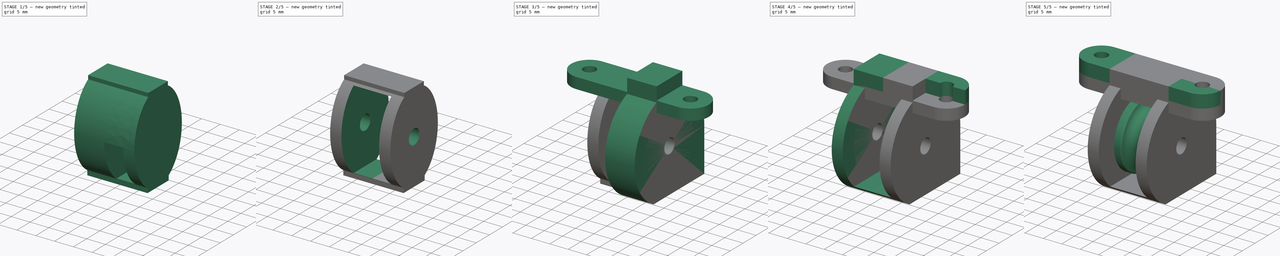
[diagram: build sequence overview — one tinted view per stage of 5, left to right]
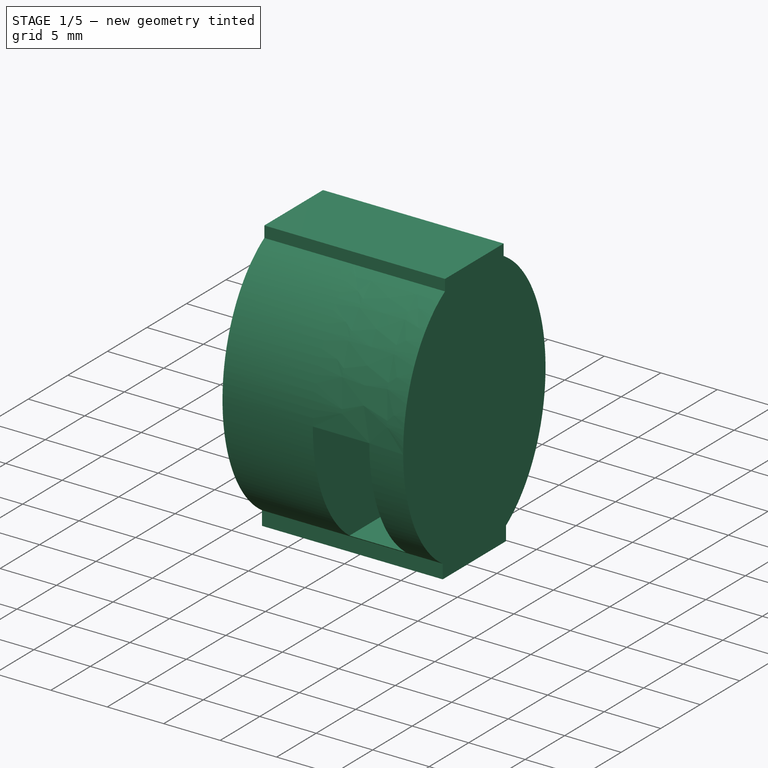
[diagram: stage 1 of 5 — iso view after this stage's code; geometry added in this stage tinted green]
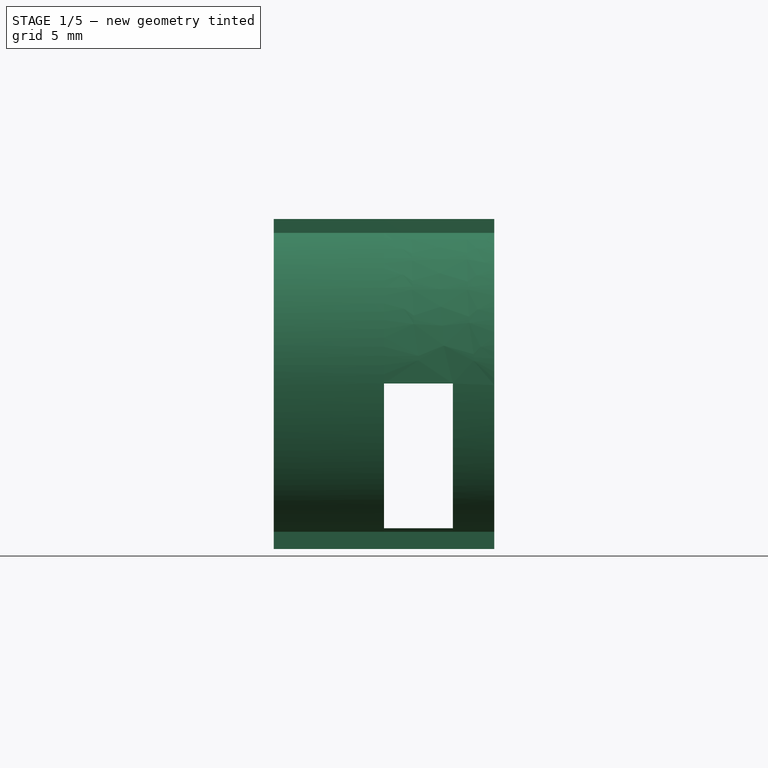
[diagram: stage 1 of 5 — front view after this stage's code; geometry added in this stage tinted green]
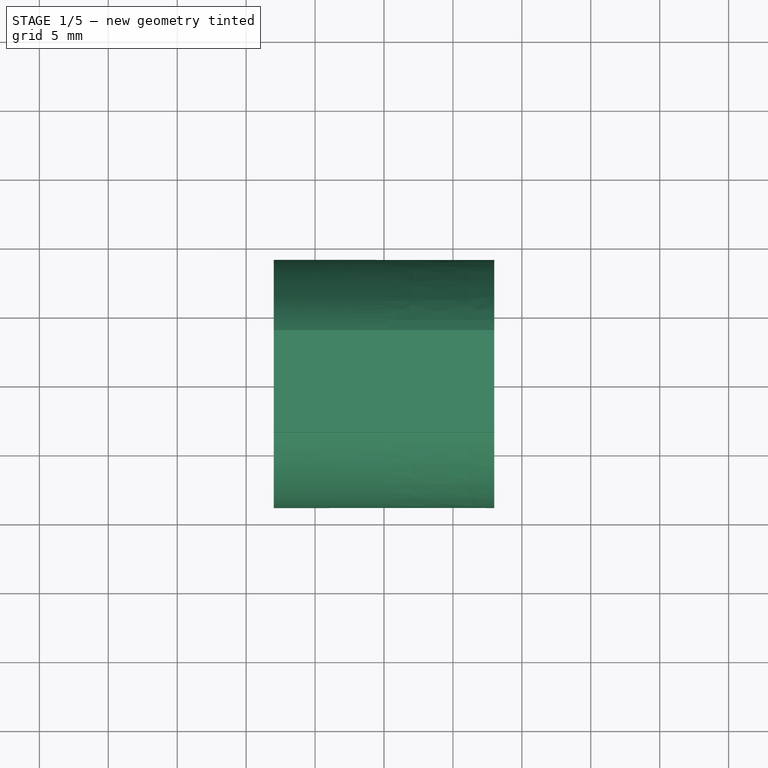
[diagram: stage 1 of 5 — top view after this stage's code; geometry added in this stage tinted green]
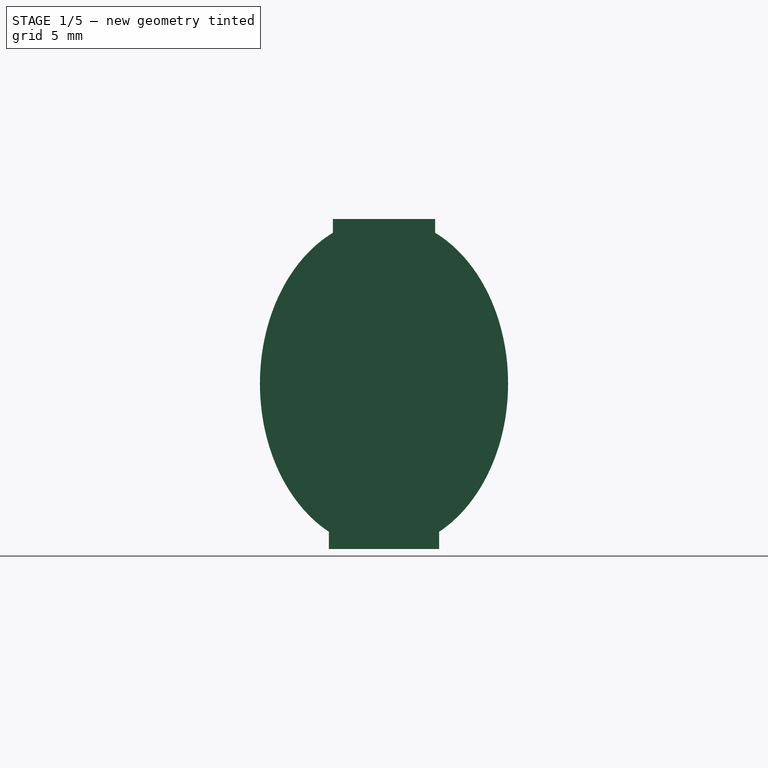
[diagram: stage 1 of 5 — right view after this stage's code; geometry added in this stage tinted green]
FCSTD DOCUMENT  (FreeCAD 0.19R24291 (Git))
Label: Block
License: All rights reserved
LicenseURL: http://en.wikipedia.org/wiki/All_rights_reserved
objects: PartDesign::Mirrored×11, Sketcher::SketchObject×10, PartDesign::Pocket×5, PartDesign::Pad×4, PartDesign::MultiTransform×4, PartDesign::Body×3, PartDesign::Revolution×1
note: 48 computed .brp shape members not serialized (recipe doc carries the construction recipe); baked Part::Feature solids carry a one-line shape summary decoded from their .brp

FEATURE [PartDesign::Body] Body
  Group = -> [Sketch,Revolution,Mirrored]
  Origin = -> Origin
  Tip = -> Mirrored
FEATURE [Sketcher::SketchObject] Sketch001
  FullyConstrained = false
  MapMode = 5
  Placement = pos=(0,0,0) rot=(0.57735,0.57735,0.57735;2.0944rad)
  Support = -> [YZ_Plane001]
  sketch-geometry (15):
    g0: LineSegment StartX=0 StartY=28 StartZ=0 EndX=2.5 EndY=28 EndZ=0
    g1: LineSegment StartX=2.5 StartY=28 StartZ=0 EndX=2.5 EndY=13.0745 EndZ=0
    g2: ArcOfCircle CenterX=5 CenterY=13.0745 CenterZ=0 NormalX=0 NormalY=0 NormalZ=1 AngleXU=0 Radius=2.5 StartAngle=3.14159 EndAngle=4.16972
    g3: LineSegment StartX=0 StartY=28 StartZ=0 EndX=0 EndY=-12 EndZ=0
    g4: ArcOfEllipse CenterX=0 CenterY=0 CenterZ=0 NormalX=0 NormalY=0 NormalZ=1 MajorRadius=12 MinorRadius=9 AngleXU=-1.5708 StartAngle=0.460554 EndAngle=2.71683
    g5: LineSegment StartX=0 StartY=-12 StartZ=0 EndX=0 EndY=12 EndZ=0
    g6: LineSegment StartX=9 StartY=0 StartZ=0 EndX=-9 EndY=0 EndZ=0
    g7: GeomPoint X=0 Y=-7.93725 Z=0
    g8: GeomPoint X=0 Y=7.93725 Z=0
    g9: LineSegment StartX=3.70894 StartY=10.9336 StartZ=0 EndX=1.56169 EndY=12.2286 EndZ=0
    g10: LineSegment StartX=0 StartY=-12 StartZ=0 EndX=4 EndY=-12 EndZ=0
    g11: LineSegment StartX=4 StartY=-12 StartZ=0 EndX=4 EndY=-10.7497 EndZ=0
    g12: LineSegment StartX=3.70894 StartY=10.9336 StartZ=0 EndX=3.70894 EndY=11.9336 EndZ=0
    g13: LineSegment StartX=3.70894 StartY=11.9336 StartZ=0 EndX=0 EndY=11.9336 EndZ=0
    g14: LineSegment StartX=0 StartY=11.9336 StartZ=0 EndX=0 EndY=-12 EndZ=0
  constraints (35):
    c: PointOnObject(g0,g-2)
    c: Horizontal(g0)
    c: Coincident(g1,g0)
    c: Vertical(g1)
    c: Coincident(g2,g1)
    c: PointOnObject(g3,g-2)
    c: Coincident(g3,g0)
    c: InternalAlignment(g5-g8 -> g4) x4
    c: Coincident(g4,g-1)
    c: Vertical(g5)
    c: Coincident(g2,g4)
    c: Tangent(g2,g1)
    c: DistanceY(g3) = -12
    c: DistanceX(g6) = 9
    c: DistanceY(g5,g0) = 16
    c: DistanceX(g0) = 2.5
    c: Coincident(g9,g2)
    c: Tangent(g9,g4)
    c: Tangent(g9,g2)
    c: Diameter(g2) = 5
    c: Coincident(g10,g3)
    c: Coincident(g11,g10)
    c: Vertical(g11)
    c: Distance(g10) = 4
    c: Horizontal(g10)
    c: Coincident(g4,g11)
    c: Horizontal(g5,g3)
    c: Coincident(g12,g4)
    c: Vertical(g12)
    c: Coincident(g13,g12)
    c: PointOnObject(g13,g3)
    c: Horizontal(g13)
    c: Coincident(g14,g13)
    c: Coincident(g14,g10)
    c: Distance(g12) = 1
FEATURE [PartDesign::Pad] Pad
  Direction = (1,1,1)
  Length = 8
  Length2 = 100
  Placement = pos=(0,0,0) rot=(0.57735,0.57735,0.57735;2.0944rad)
  Profile = -> Sketch001
  Type = 0
FEATURE [Sketcher::SketchObject] Sketch002
  FullyConstrained = true
  MapMode = 5
  Placement = pos=(0,0,0) rot=(1,0,0;1.5708rad)
  Support = -> [XZ_Plane001]
  sketch-geometry (4):
    g0: LineSegment StartX=0 StartY=0 StartZ=0 EndX=5 EndY=0 EndZ=0
    g1: LineSegment StartX=5 StartY=0 StartZ=0 EndX=5 EndY=-10.5 EndZ=0
    g2: LineSegment StartX=5 StartY=-10.5 StartZ=0 EndX=0 EndY=-10.5 EndZ=0
    g3: LineSegment StartX=0 StartY=-10.5 StartZ=0 EndX=0 EndY=0 EndZ=0
  constraints (11):
    c: Coincident(g0,g1)
    c: Coincident(g1,g2)
    c: Coincident(g2,g3)
    c: Coincident(g3,g0)
    c: Horizontal(g0)
    c: Horizontal(g2)
    c: Vertical(g1)
    c: Vertical(g3)
    c: Coincident(g0,g-1)
    c: Distance(g2) = 5
    c: Distance(g3) = 10.5
FEATURE [Sketcher::SketchObject] Sketch003
  FullyConstrained = false
  MapMode = 5
  Placement = pos=(0,0,0) rot=(1,0,0;1.5708rad)
  Support = -> [XZ_Plane001]
  sketch-geometry (8):
    g0: GeomPoint X=0 Y=28 Z=0
    g1: GeomPoint X=0 Y=12 Z=0
    g2: Circle CenterX=5.06431 CenterY=20 CenterZ=0 NormalX=0 NormalY=0 NormalZ=1 AngleXU=0 Radius=1.7
    g3: LineSegment StartX=0 StartY=12 StartZ=0 EndX=5.06431 EndY=20 EndZ=0
    g4: LineSegment StartX=5.06431 StartY=20 StartZ=0 EndX=0 EndY=28 EndZ=0
    g5: LineSegment StartX=5.06431 StartY=20 StartZ=0 EndX=0 EndY=20 EndZ=0
    g6: LineSegment StartX=5.06431 StartY=20 StartZ=0 EndX=6.53215 EndY=20 EndZ=0
    g7: LineSegment StartX=6.53215 StartY=20 StartZ=0 EndX=8 EndY=20 EndZ=0
  constraints (19):
    c: PointOnObject(g0,g-2)
    c: PointOnObject(g1,g-2)
    c: DistanceY(g1) = 12
    c: DistanceY(g0) = 28
    c: Coincident(g3,g1)
    c: Coincident(g3,g2)
    c: Coincident(g4,g2)
    c: Coincident(g4,g0)
    c: Equal(g4,g3)
    c: Coincident(g5,g2)
    c: Horizontal(g5)
    c: Coincident(g6,g2)
    c: Horizontal(g6)
    c: Coincident(g7,g6)
    c: Horizontal(g7)
    c: PointOnObject(g5,g-2)
    c: DistanceX(g7) = 8
    c: Equal(g7,g6)
    c: Diameter(g2) = 3.4
FEATURE [PartDesign::Mirrored] Mirrored001
  MirrorPlane = -> Sketch001 [V_Axis]
  Placement = pos=(0,0,0) rot=(0.57735,0.57735,0.57735;2.0944rad)
FEATURE [PartDesign::Mirrored] Mirrored002
  MirrorPlane = -> YZ_Plane001
  Placement = pos=(0,0,0) rot=(0.57735,0.57735,0.57735;2.0944rad)
FEATURE [PartDesign::MultiTransform] MultiTransform
  BaseFeature = -> Pad
  Originals = -> [Pad]
  Placement = pos=(0,0,0) rot=(0.57735,0.57735,0.57735;2.0944rad)
  Transformations = -> [Mirrored001,Mirrored002]
FEATURE [PartDesign::Pocket] Pocket
  BaseFeature = -> MultiTransform
  Length = 5
  Length2 = 100
  Midplane = true
  Placement = pos=(0,0,0) rot=(0.57735,0.57735,0.57735;2.0944rad)
  Profile = -> Sketch002
  Type = 1
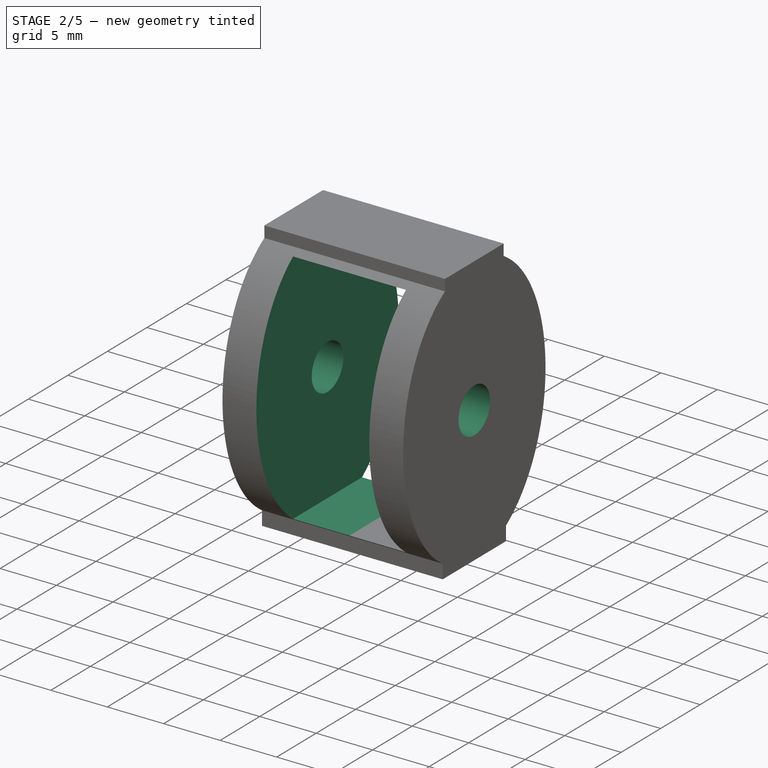
[diagram: stage 2 of 5 — iso view after this stage's code; geometry added in this stage tinted green]
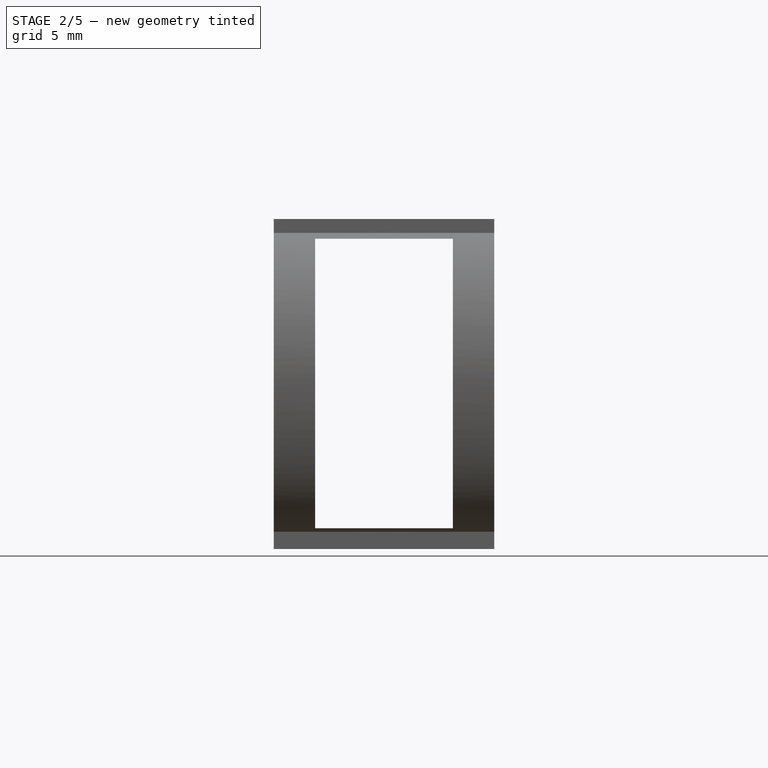
[diagram: stage 2 of 5 — front view after this stage's code; geometry added in this stage tinted green]
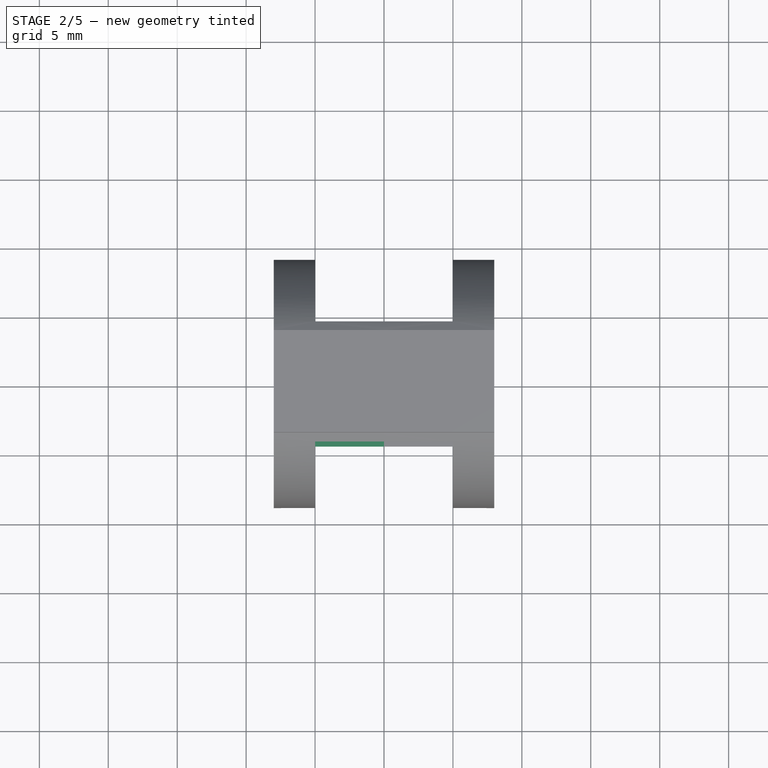
[diagram: stage 2 of 5 — top view after this stage's code; geometry added in this stage tinted green]
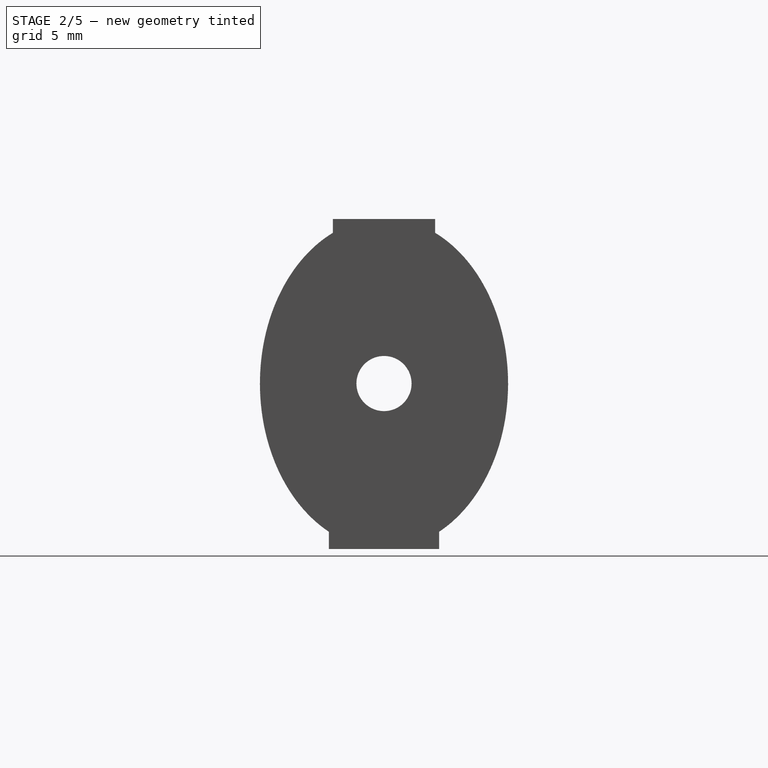
[diagram: stage 2 of 5 — right view after this stage's code; geometry added in this stage tinted green]
FEATURE [PartDesign::Pocket] Pocket001
  BaseFeature = -> Pocket
  Length = 5
  Length2 = 100
  Midplane = true
  Placement = pos=(0,0,0) rot=(0.57735,0.57735,0.57735;2.0944rad)
  Profile = -> Sketch003
  Type = 1
FEATURE [PartDesign::Mirrored] Mirrored003
  MirrorPlane = -> Sketch002 [V_Axis]
  Placement = pos=(0,0,0) rot=(0.57735,0.57735,0.57735;2.0944rad)
FEATURE [PartDesign::Mirrored] Mirrored004
  MirrorPlane = -> Sketch002 [H_Axis]
  Placement = pos=(0,0,0) rot=(0.57735,0.57735,0.57735;2.0944rad)
FEATURE [PartDesign::MultiTransform] MultiTransform001
  BaseFeature = -> Pocket001
  Originals = -> [Pocket]
  Placement = pos=(0,0,0) rot=(0.57735,0.57735,0.57735;2.0944rad)
  Transformations = -> [Mirrored003,Mirrored004]
FEATURE [PartDesign::Mirrored] Mirrored005
  BaseFeature = -> MultiTransform001
  MirrorPlane = -> Sketch003 [V_Axis]
  Originals = -> [Pocket001]
  Placement = pos=(0,0,0) rot=(0.57735,0.57735,0.57735;2.0944rad)
FEATURE [Sketcher::SketchObject] Sketch004
  FullyConstrained = true
  MapMode = 5
  Placement = pos=(0,0,0) rot=(0.57735,0.57735,0.57735;2.0944rad)
  Support = -> [YZ_Plane001]
  sketch-geometry (1):
    g0: Circle CenterX=0 CenterY=0 CenterZ=0 NormalX=0 NormalY=0 NormalZ=1 AngleXU=0 Radius=2
  constraints (2):
    c: Coincident(g0,g-1)
    c: Diameter(g0) = 4
FEATURE [PartDesign::Pocket] Pocket002
  BaseFeature = -> Mirrored005
  Length = 5
  Length2 = 100
  Midplane = true
  Placement = pos=(0,0,0) rot=(0.57735,0.57735,0.57735;2.0944rad)
  Profile = -> Sketch004
  Type = 1
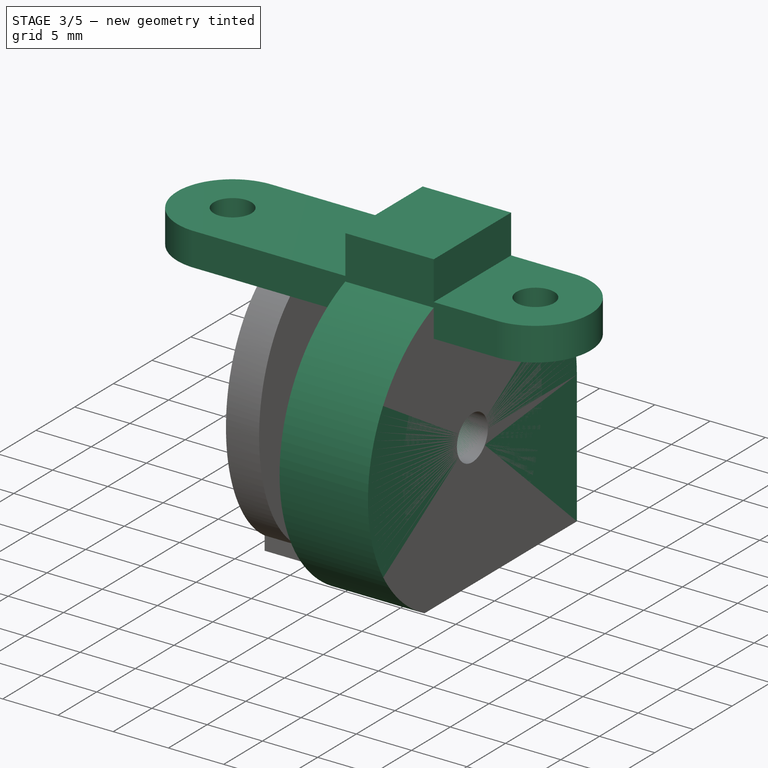
[diagram: stage 3 of 5 — iso view after this stage's code; geometry added in this stage tinted green]
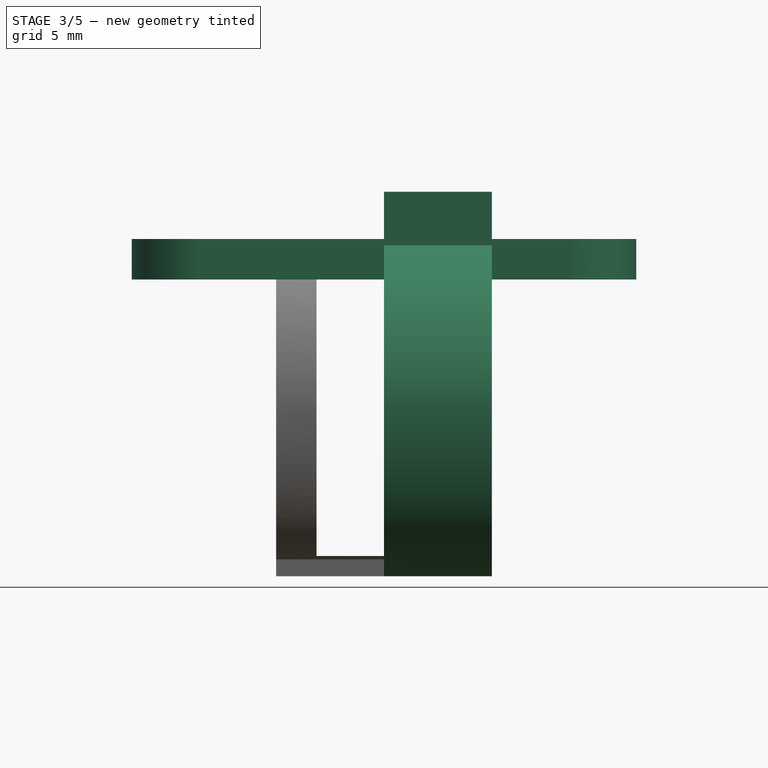
[diagram: stage 3 of 5 — front view after this stage's code; geometry added in this stage tinted green]
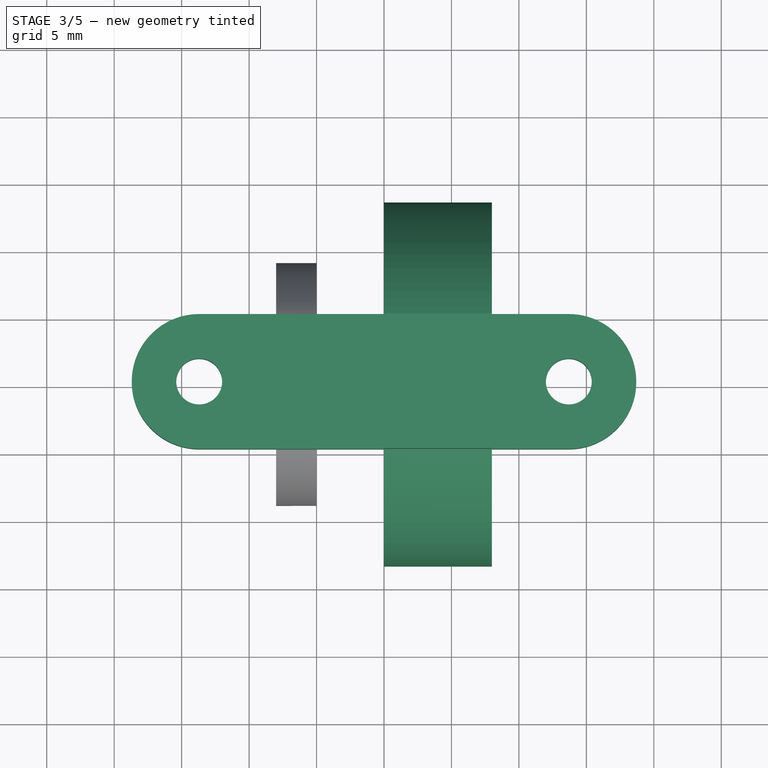
[diagram: stage 3 of 5 — top view after this stage's code; geometry added in this stage tinted green]
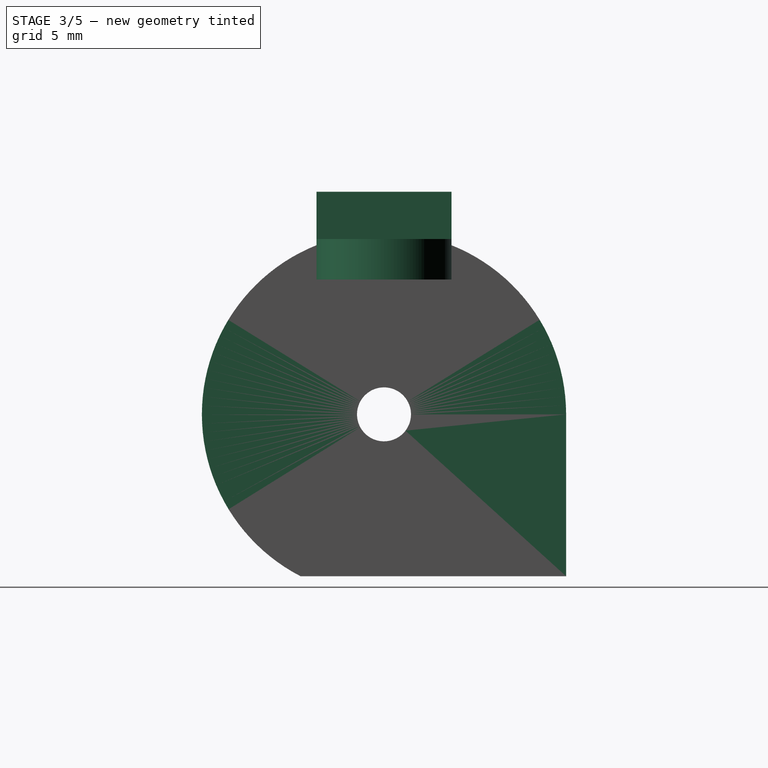
[diagram: stage 3 of 5 — right view after this stage's code; geometry added in this stage tinted green]
FEATURE [Sketcher::SketchObject] Sketch005
  FullyConstrained = true
  MapMode = 5
  Placement = pos=(0,0,0) rot=(0.57735,0.57735,0.57735;2.0944rad)
  Support = -> [YZ_Plane002]
  sketch-geometry (14):
    g0: ArcOfCircle CenterX=0 CenterY=0 CenterZ=0 NormalX=0 NormalY=0 NormalZ=1 AngleXU=0 Radius=13.5 StartAngle=0 EndAngle=1.19139
    g1: ArcOfCircle CenterX=0 CenterY=0 CenterZ=0 NormalX=0 NormalY=0 NormalZ=1 AngleXU=0 Radius=13.5 StartAngle=1.9502 EndAngle=4.23651
    g2: LineSegment StartX=13.5 StartY=0 StartZ=0 EndX=13.5 EndY=-12 EndZ=0
    g3: LineSegment StartX=13.5 StartY=-12 StartZ=0 EndX=-6.18466 EndY=-12 EndZ=0
    g4: LineSegment StartX=-5 StartY=12.5399 StartZ=0 EndX=-5 EndY=16.5 EndZ=0
    g5: LineSegment StartX=-5 StartY=16.5 StartZ=0 EndX=5 EndY=16.5 EndZ=0
    g6: LineSegment StartX=5 StartY=16.5 StartZ=0 EndX=5 EndY=12.5399 EndZ=0
    g7: LineSegment StartX=-5 StartY=16.5 StartZ=0 EndX=5 EndY=12.5399 EndZ=0
    g8: LineSegment StartX=5 StartY=16.5 StartZ=0 EndX=-5 EndY=12.5399 EndZ=0
    g9: GeomPoint X=0 Y=14.52 Z=0
    g10: Circle CenterX=0 CenterY=0 CenterZ=0 NormalX=0 NormalY=0 NormalZ=1 AngleXU=0 Radius=2
    g11: GeomPoint X=0 Y=13.5 Z=0
    g12: LineSegment StartX=6.5 StartY=-12 StartZ=0 EndX=9 EndY=-12 EndZ=0
    g13: LineSegment StartX=9 StartY=-12 StartZ=0 EndX=11.5 EndY=-12 EndZ=0
  constraints (38):
    c: Coincident(g0,g-1)
    c: PointOnObject(g0,g-1)
    c: Coincident(g1,g0)
    c: Coincident(g2,g0)
    c: Vertical(g2)
    c: Coincident(g3,g2)
    c: Coincident(g3,g1)
    c: Horizontal(g3)
    c: Equal(g0,g1)
    c: Coincident(g4,g5)
    c: Coincident(g5,g6)
    c: Horizontal(g5)
    c: Vertical(g4)
    c: Vertical(g6)
    c: Coincident(g1,g4)
    c: Coincident(g0,g6)
    c: Coincident(g7,g4)
    c: Coincident(g7,g0)
    c: Coincident(g8,g5)
    c: Coincident(g8,g1)
    c: PointOnObject(g9,g8)
    c: PointOnObject(g9,g7)
    c: PointOnObject(g9,g-2)
    c: Distance(g5) = 10
    c: Coincident(g10,g0)
    c: Diameter(g10) = 4
    c: PointOnObject(g11,g-2)
    c: PointOnObject(g11,g0)
    c: Distance(g11,g5) = 3
    c: PointOnObject(g12,g3)
    c: PointOnObject(g12,g3)
    c: Coincident(g13,g12)
    c: PointOnObject(g13,g3)
    c: DistanceX(g12) = 9
    c: Equal(g12,g13)
    c: Distance(g13,g12) = 5
    c: Distance(g13,g2) = 2
    c: DistanceY(g12) = -12
FEATURE [PartDesign::Pad] Pad001
  Direction = (1,1,1)
  Length = 8
  Length2 = 100
  Placement = pos=(0,0,0) rot=(0.57735,0.57735,0.57735;2.0944rad)
  Profile = -> Sketch005
  Type = 0
FEATURE [PartDesign::Body] Body002
  Group = -> [Sketch005,Pad001,Sketch006,Sketch007,Sketch008,Mirrored006,Pocket003,Pocket004,Pad002,MultiTransform002,Mirrored007,Mirrored008]
  Origin = -> Origin002
  Tip = -> MultiTransform002
FEATURE [Sketcher::SketchObject] Sketch009
  AttachmentOffset = pos=(0,0,10) rot=(0,0,1;0rad)
  FullyConstrained = true
  MapMode = 5
  Placement = pos=(0,0,10) rot=(0,0,1;0rad)
  Support = -> [XY_Plane001]
  sketch-geometry (7):
    g0: LineSegment StartX=13.7 StartY=5 StartZ=0 EndX=0 EndY=5 EndZ=0
    g1: LineSegment StartX=0 StartY=5 StartZ=0 EndX=0 EndY=0 EndZ=0
    g2: LineSegment StartX=0 StartY=0 StartZ=0 EndX=8 EndY=0 EndZ=0
    g3: LineSegment StartX=8 StartY=0 StartZ=0 EndX=12 EndY=2e-16 EndZ=0
    g4: LineSegment StartX=15.4 StartY=0 StartZ=0 EndX=18.7 EndY=0 EndZ=0
    g5: ArcOfCircle CenterX=13.7 CenterY=0 CenterZ=0 NormalX=0 NormalY=0 NormalZ=1 AngleXU=0 Radius=1.7 StartAngle=0 EndAngle=3.14159
    g6: ArcOfCircle CenterX=13.7 CenterY=0 CenterZ=0 NormalX=0 NormalY=0 NormalZ=1 AngleXU=0 Radius=5 StartAngle=0 EndAngle=1.5708
  constraints (20):
    c: Coincident(g0,g1)
    c: Horizontal(g0)
    c: Vertical(g1)
    c: Distance(g1) = 5
    c: Coincident(g2,g1)
    c: PointOnObject(g2,g-1)
    c: Coincident(g3,g2)
    c: PointOnObject(g3,g-1)
    c: PointOnObject(g4,g-1)
    c: PointOnObject(g5,g-1)
    c: Coincident(g5,g3)
    c: Coincident(g5,g4)
    c: DistanceX(g2) = 8
    c: Distance(g3) = 4
    c: Tangent(g0,g6) = -1.5708
    c: Coincident(g4,g6)
    c: Coincident(g6,g5)
    c: Horizontal(g4)
    c: Diameter(g5) = 3.4
    c: Coincident(g1,g-1)
FEATURE [PartDesign::Pad] Pad003
  BaseFeature = -> Pocket002
  Direction = (1,1,1)
  Length = 3
  Length2 = 100
  Placement = pos=(0,0,0) rot=(0.57735,0.57735,0.57735;2.0944rad)
  Profile = -> Sketch009
  Type = 0
FEATURE [PartDesign::Mirrored] Mirrored009
  MirrorPlane = -> Sketch009 [V_Axis]
  Placement = pos=(0,0,0) rot=(0.57735,0.57735,0.57735;2.0944rad)
FEATURE [PartDesign::Mirrored] Mirrored010
  MirrorPlane = -> Sketch009 [H_Axis]
  Placement = pos=(0,0,0) rot=(0.57735,0.57735,0.57735;2.0944rad)
FEATURE [PartDesign::MultiTransform] MultiTransform003
  BaseFeature = -> Pad003
  Originals = -> [Pad003]
  Placement = pos=(0,0,0) rot=(0.57735,0.57735,0.57735;2.0944rad)
  Transformations = -> [Mirrored009,Mirrored010]
FEATURE [PartDesign::Body] Body001
  Group = -> [Sketch001,Pad,Sketch002,Sketch003,MultiTransform,Mirrored001,Mirrored002,Pocket,Pocket001,MultiTransform001,Mirrored003,Mirrored004,Mirrored005,Sketch004,Pocket002,Sketch009,Pad003,MultiTransform003,Mirrored009,Mirrored010]
  Origin = -> Origin001
  Tip = -> MultiTransform003
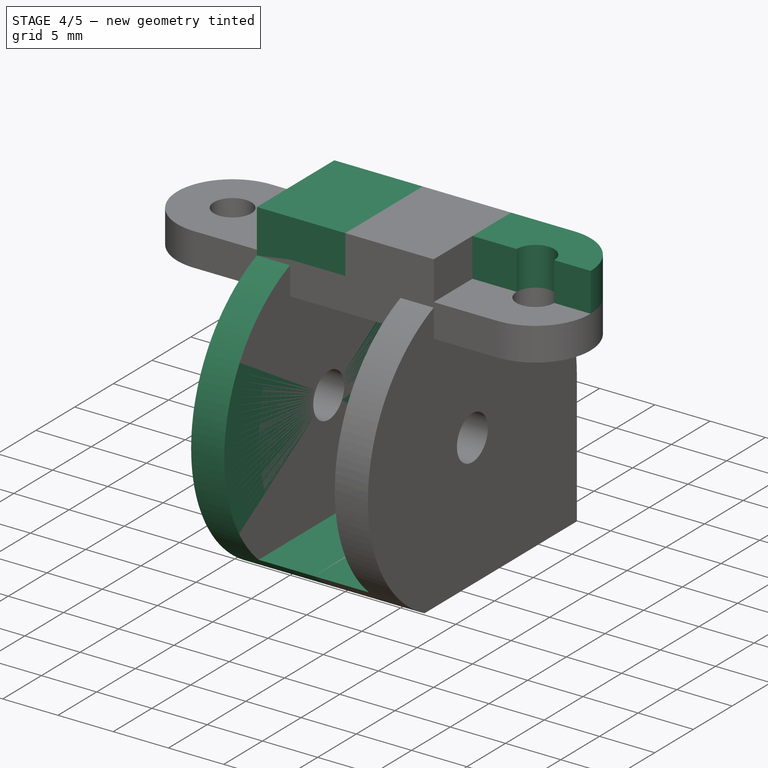
[diagram: stage 4 of 5 — iso view after this stage's code; geometry added in this stage tinted green]
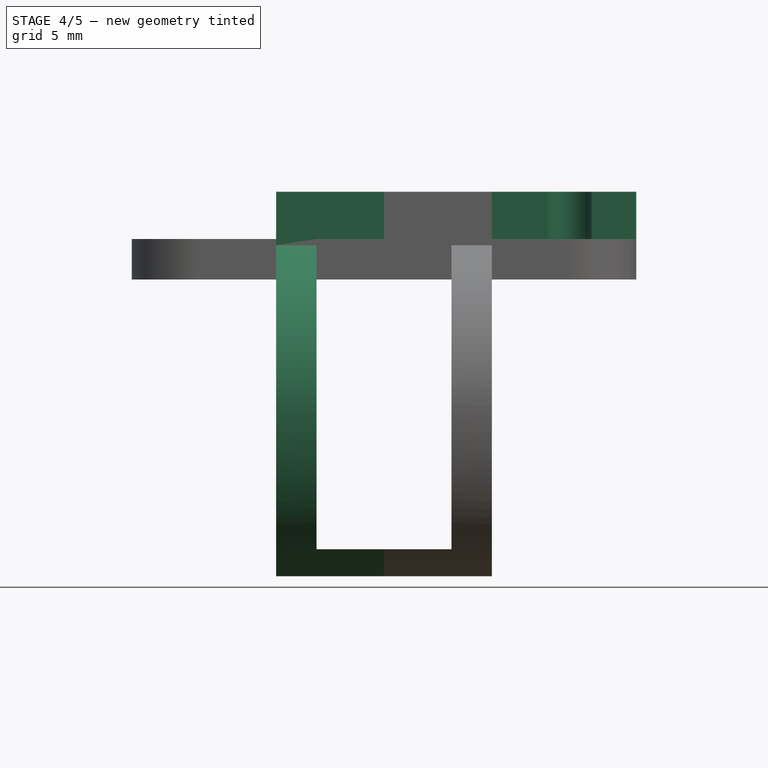
[diagram: stage 4 of 5 — front view after this stage's code; geometry added in this stage tinted green]
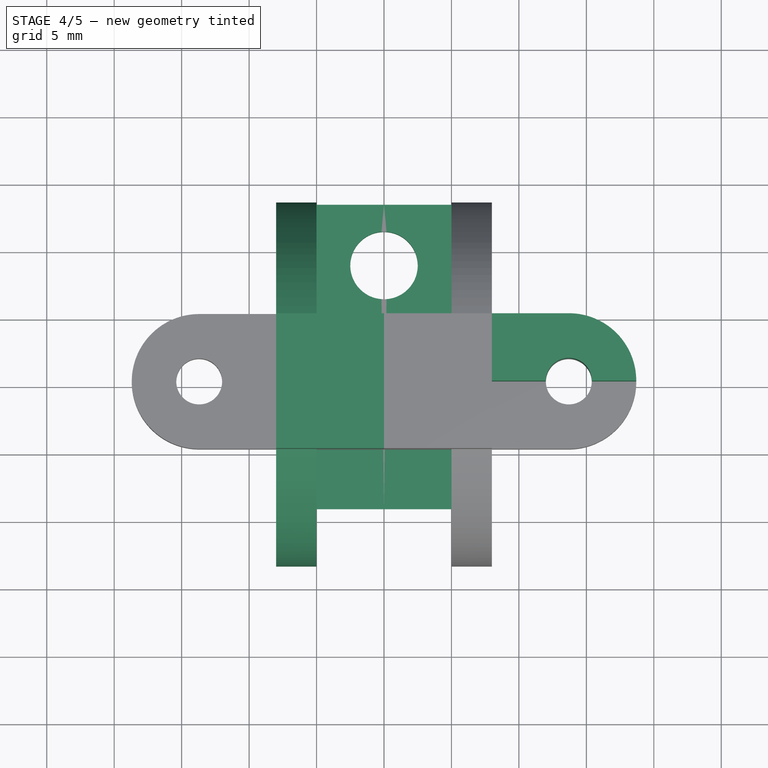
[diagram: stage 4 of 5 — top view after this stage's code; geometry added in this stage tinted green]
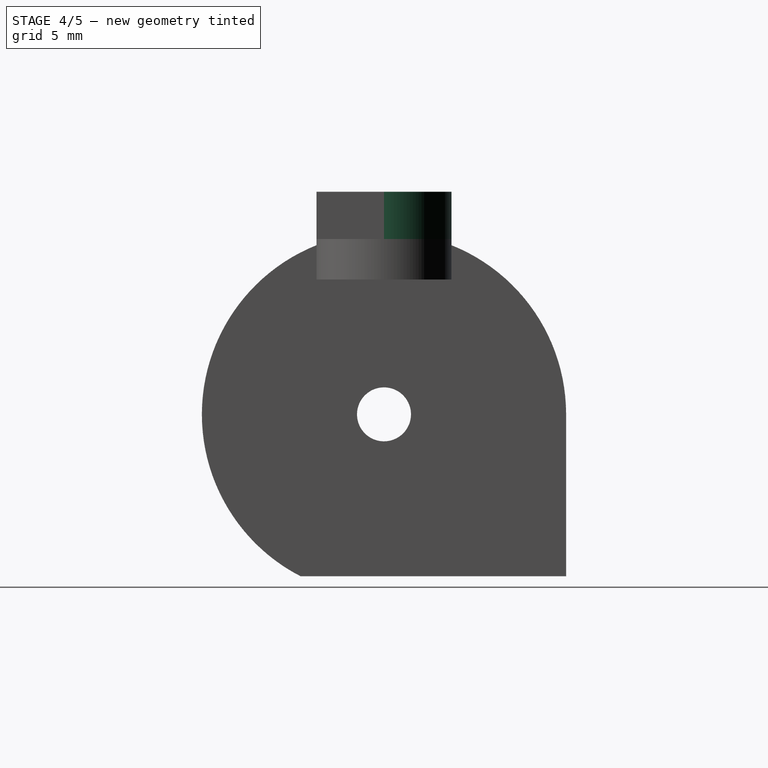
[diagram: stage 4 of 5 — right view after this stage's code; geometry added in this stage tinted green]
FEATURE [Sketcher::SketchObject] Sketch006
  FullyConstrained = false
  MapMode = 5
  Placement = pos=(0,0,0) rot=(1,0,0;1.5708rad)
  Support = -> [XZ_Plane002]
  sketch-geometry (6):
    g0: LineSegment StartX=-5 StartY=-10 StartZ=0 EndX=5 EndY=-10 EndZ=0
    g1: LineSegment StartX=5 StartY=-10 StartZ=0 EndX=5 EndY=13 EndZ=0
    g2: LineSegment StartX=5 StartY=13 StartZ=0 EndX=-5 EndY=13 EndZ=0
    g3: LineSegment StartX=-5 StartY=13 StartZ=0 EndX=-5 EndY=-10 EndZ=0
    g4: LineSegment StartX=-5 StartY=13 StartZ=0 EndX=5 EndY=-10 EndZ=0
    g5: LineSegment StartX=-5 StartY=-10 StartZ=0 EndX=5 EndY=13 EndZ=0
  constraints (15):
    c: Coincident(g0,g1)
    c: Coincident(g1,g2)
    c: Coincident(g2,g3)
    c: Coincident(g3,g0)
    c: Horizontal(g0)
    c: Horizontal(g2)
    c: Vertical(g1)
    c: Vertical(g3)
    c: Coincident(g4,g2)
    c: Coincident(g4,g0)
    c: Coincident(g5,g0)
    c: Coincident(g5,g1)
    c: Distance(g0) = 10
    c: Distance(g-1,g0) = 10
    c: Distance(g-1,g2) = 13
FEATURE [Sketcher::SketchObject] Sketch007
  FullyConstrained = true
  MapMode = 5
  Support = -> [XY_Plane002]
  sketch-geometry (1):
    g0: Circle CenterX=0 CenterY=9 CenterZ=0 NormalX=0 NormalY=0 NormalZ=1 AngleXU=0 Radius=2.5
  constraints (3):
    c: PointOnObject(g0,g-2)
    c: Diameter(g0) = 5
    c: DistanceY(g0) = 9
FEATURE [Sketcher::SketchObject] Sketch008
  AttachmentOffset = pos=(0,0,13) rot=(0,0,1;0rad)
  FullyConstrained = true
  MapMode = 5
  Placement = pos=(0,0,13) rot=(0,0,1;0rad)
  Support = -> [XY_Plane002]
  sketch-geometry (7):
    g0: LineSegment StartX=13.7 StartY=5 StartZ=0 EndX=0 EndY=5 EndZ=0
    g1: LineSegment StartX=0 StartY=5 StartZ=0 EndX=0 EndY=0 EndZ=0
    g2: ArcOfCircle CenterX=13.7 CenterY=0 CenterZ=0 NormalX=0 NormalY=0 NormalZ=1 AngleXU=0 Radius=1.7 StartAngle=0 EndAngle=3.14159
    g3: LineSegment StartX=15.4 StartY=0 StartZ=0 EndX=18.7 EndY=0 EndZ=0
    g4: LineSegment StartX=0 StartY=0 StartZ=0 EndX=8 EndY=0 EndZ=0
    g5: LineSegment StartX=8 StartY=0 StartZ=0 EndX=12 EndY=0 EndZ=0
    g6: ArcOfCircle CenterX=13.7 CenterY=0 CenterZ=0 NormalX=0 NormalY=0 NormalZ=1 AngleXU=0 Radius=5 StartAngle=6.6e-15 EndAngle=1.5708
  constraints (20):
    c: Coincident(g0,g1)
    c: Horizontal(g0)
    c: Vertical(g1)
    c: Coincident(g3,g2)
    c: Diameter(g2) = 3.4
    c: Coincident(g4,g1)
    c: PointOnObject(g4,g-1)
    c: Coincident(g5,g4)
    c: Coincident(g5,g2)
    c: Horizontal(g5)
    c: Horizontal(g2,g2)
    c: Horizontal(g3)
    c: DistanceX(g4) = 8
    c: Distance(g5) = 4
    c: PointOnObject(g2,g-1)
    c: Coincident(g-1,g1)
    c: Distance(g1) = 5
    c: Tangent(g0,g6) = -1.5708
    c: Coincident(g6,g2)
    c: Coincident(g6,g3)
FEATURE [PartDesign::Mirrored] Mirrored006
  BaseFeature = -> Pad001
  MirrorPlane = -> YZ_Plane002
  Originals = -> [Pad001]
  Placement = pos=(0,0,0) rot=(0.57735,0.57735,0.57735;2.0944rad)
FEATURE [PartDesign::Pocket] Pocket003
  BaseFeature = -> Mirrored006
  Length = 5
  Length2 = 100
  Midplane = true
  Placement = pos=(0,0,0) rot=(0.57735,0.57735,0.57735;2.0944rad)
  Profile = -> Sketch006
  Type = 1
FEATURE [PartDesign::Pocket] Pocket004
  BaseFeature = -> Pocket003
  Length = 5
  Length2 = 100
  Placement = pos=(0,0,0) rot=(0.57735,0.57735,0.57735;2.0944rad)
  Profile = -> Sketch007
  Type = 1
FEATURE [PartDesign::Pad] Pad002
  BaseFeature = -> Pocket004
  Direction = (1,1,1)
  Length = 3.5
  Length2 = 100
  Placement = pos=(0,0,0) rot=(0.57735,0.57735,0.57735;2.0944rad)
  Profile = -> Sketch008
  Type = 0
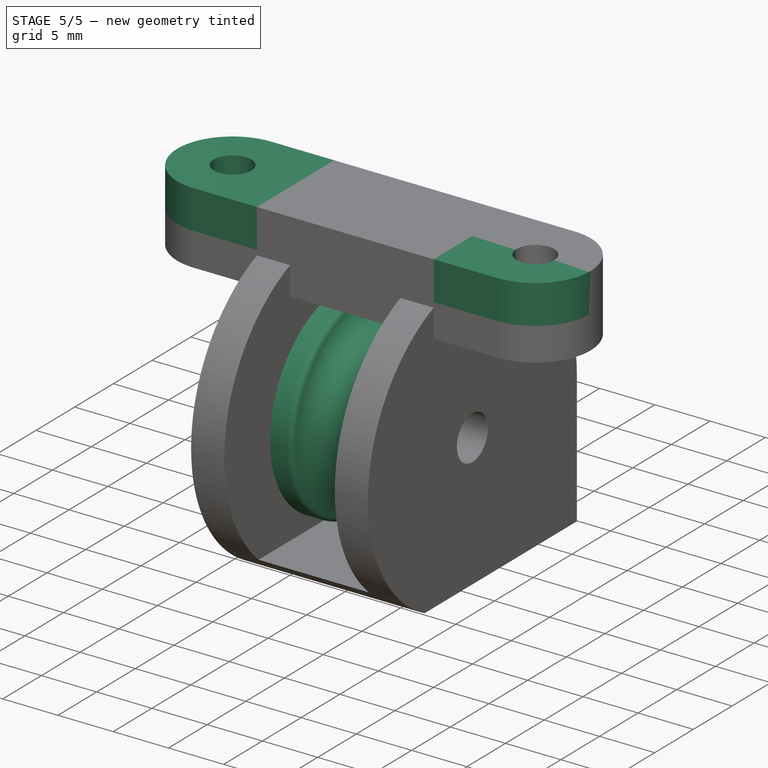
[diagram: stage 5 of 5 — iso view after this stage's code; geometry added in this stage tinted green]
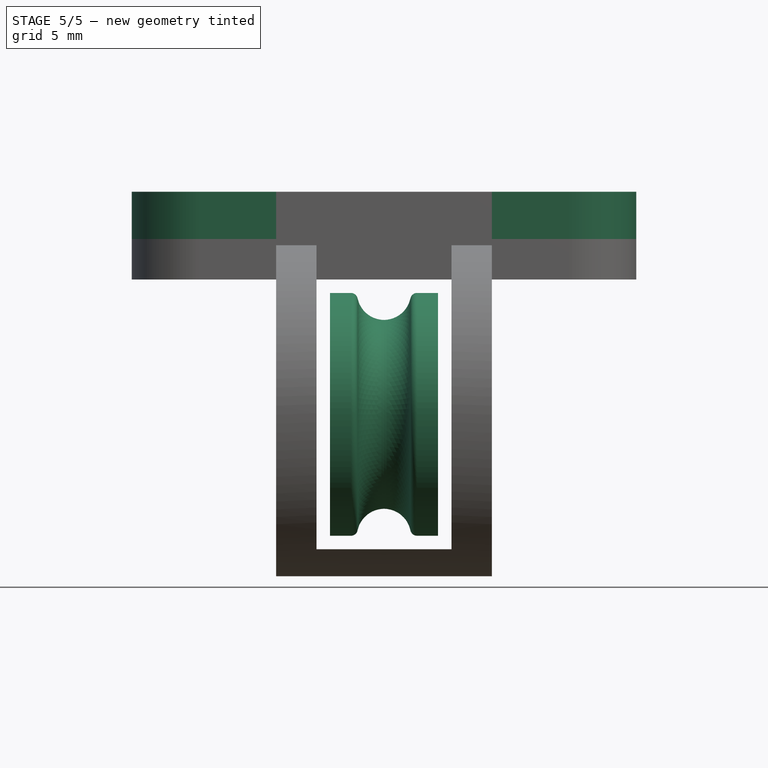
[diagram: stage 5 of 5 — front view after this stage's code; geometry added in this stage tinted green]
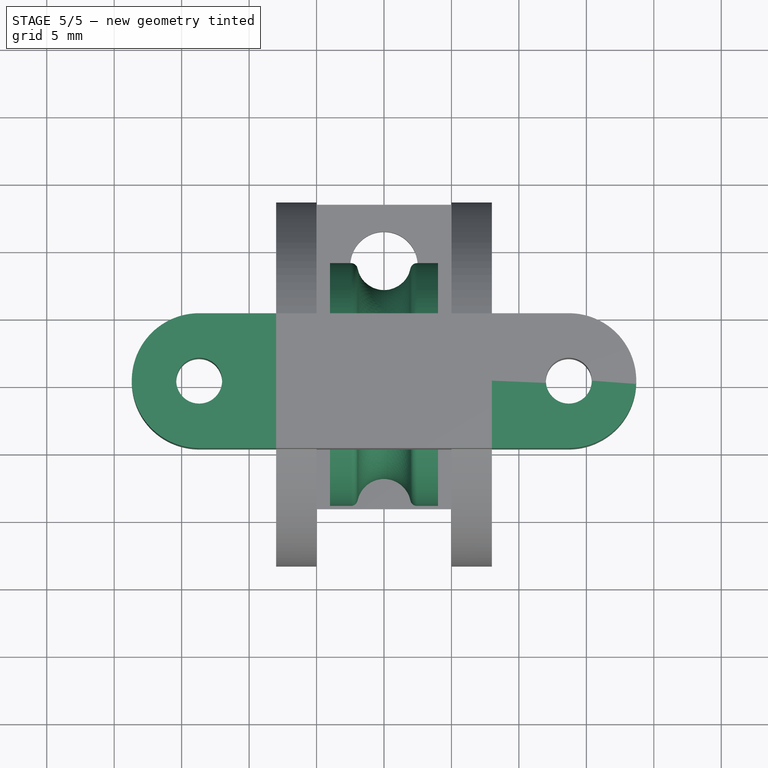
[diagram: stage 5 of 5 — top view after this stage's code; geometry added in this stage tinted green]
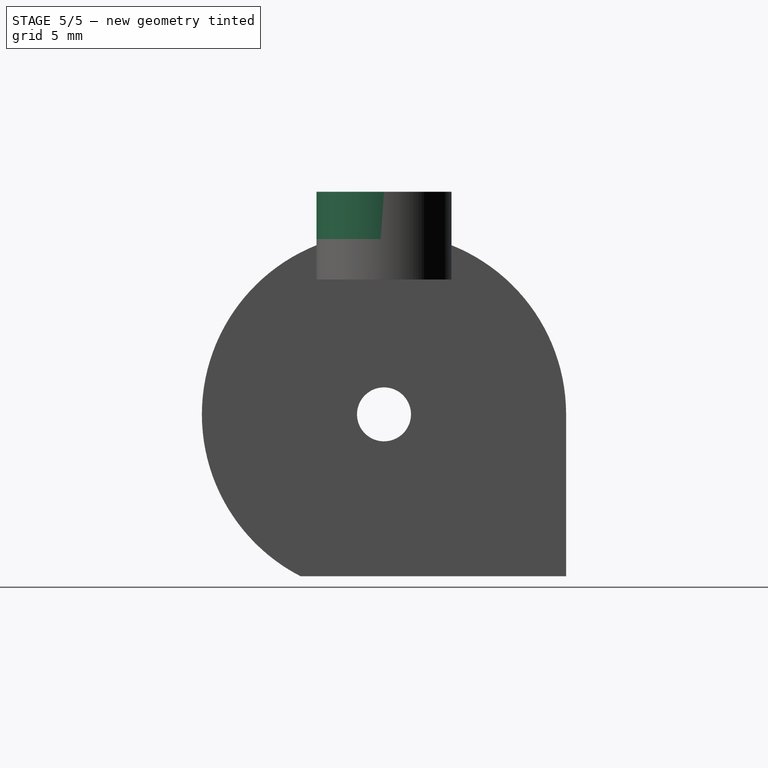
[diagram: stage 5 of 5 — right view after this stage's code; geometry added in this stage tinted green]
FEATURE [Sketcher::SketchObject] Sketch
  FullyConstrained = true
  MapMode = 5
  Support = -> [XY_Plane]
  sketch-geometry (6):
    g0: ArcOfCircle CenterX=0 CenterY=9 CenterZ=0 NormalX=0 NormalY=0 NormalZ=1 AngleXU=0 Radius=2 StartAngle=4.71239 EndAngle=6.08183
    g1: LineSegment StartX=0 StartY=2.25 StartZ=0 EndX=4 EndY=2.25 EndZ=0
    g2: LineSegment StartX=4 StartY=2.25 StartZ=0 EndX=4 EndY=9 EndZ=0
    g3: ArcOfCircle CenterX=2.44949 CenterY=8.5 CenterZ=0 NormalX=0 NormalY=0 NormalZ=1 AngleXU=0 Radius=0.5 StartAngle=1.5708 EndAngle=2.94022
    g4: LineSegment StartX=2.44949 StartY=9 StartZ=0 EndX=4 EndY=9 EndZ=0
    g5: LineSegment StartX=0 StartY=2.25 StartZ=0 EndX=-4e-16 EndY=7 EndZ=0
  constraints (20):
    c: PointOnObject(g0,g-2)
    c: PointOnObject(g0,g-2)
    c: Diameter(g0) = 4
    c: PointOnObject(g1,g-2)
    c: Horizontal(g1)
    c: DistanceY(g0) = 9
    c: DistanceY(g1) = 2.25
    c: DistanceX(g1) = 4
    c: Coincident(g2,g1)
    c: Vertical(g2)
    c: Coincident(g3,g0)
    c: Coincident(g4,g3)
    c: Coincident(g4,g2)
    c: Horizontal(g4)
    c: DistanceY(g2) = 9
    c: Tangent(g0,g3)
    c: Tangent(g3,g4)
    c: Diameter(g3) = 1
    c: Coincident(g5,g1)
    c: Coincident(g5,g0)
FEATURE [PartDesign::Revolution] Revolution
  Angle = 360
  Axis = (1,0,0)
  Base = (0,0,0)
  Profile = -> Sketch
  ReferenceAxis = -> Sketch [H_Axis]
FEATURE [PartDesign::Mirrored] Mirrored
  BaseFeature = -> Revolution
  MirrorPlane = -> Sketch [V_Axis]
  Originals = -> [Revolution]
FEATURE [PartDesign::Mirrored] Mirrored007
  MirrorPlane = -> Sketch008 [V_Axis]
  Placement = pos=(0,0,0) rot=(0.57735,0.57735,0.57735;2.0944rad)
FEATURE [PartDesign::Mirrored] Mirrored008
  MirrorPlane = -> Sketch008 [H_Axis]
  Placement = pos=(0,0,0) rot=(0.57735,0.57735,0.57735;2.0944rad)
FEATURE [PartDesign::MultiTransform] MultiTransform002
  BaseFeature = -> Pad002
  Originals = -> [Pad002]
  Placement = pos=(0,0,0) rot=(0.57735,0.57735,0.57735;2.0944rad)
  Transformations = -> [Mirrored007,Mirrored008]
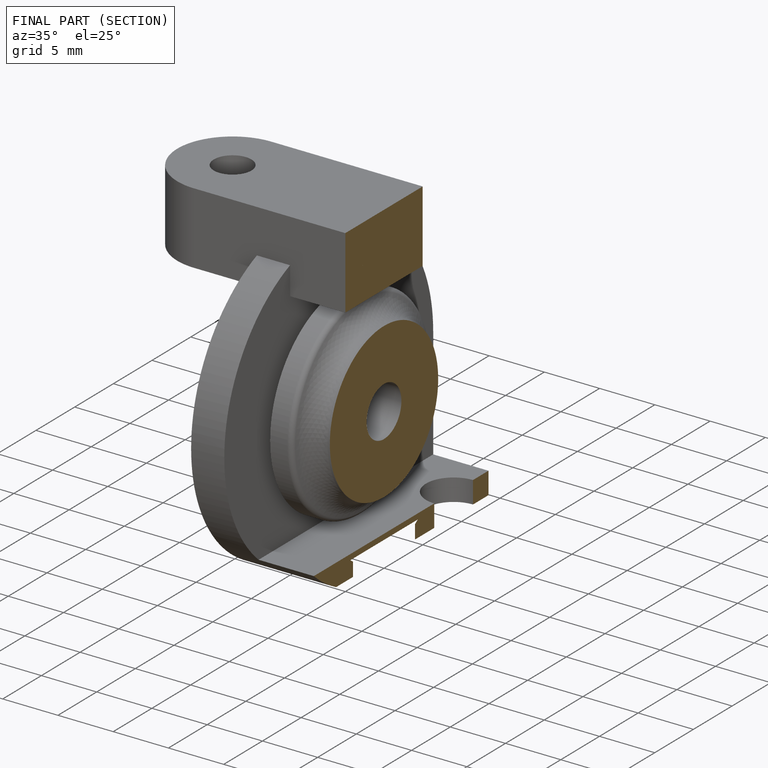
[diagram: finished part — half-section view (interior)]
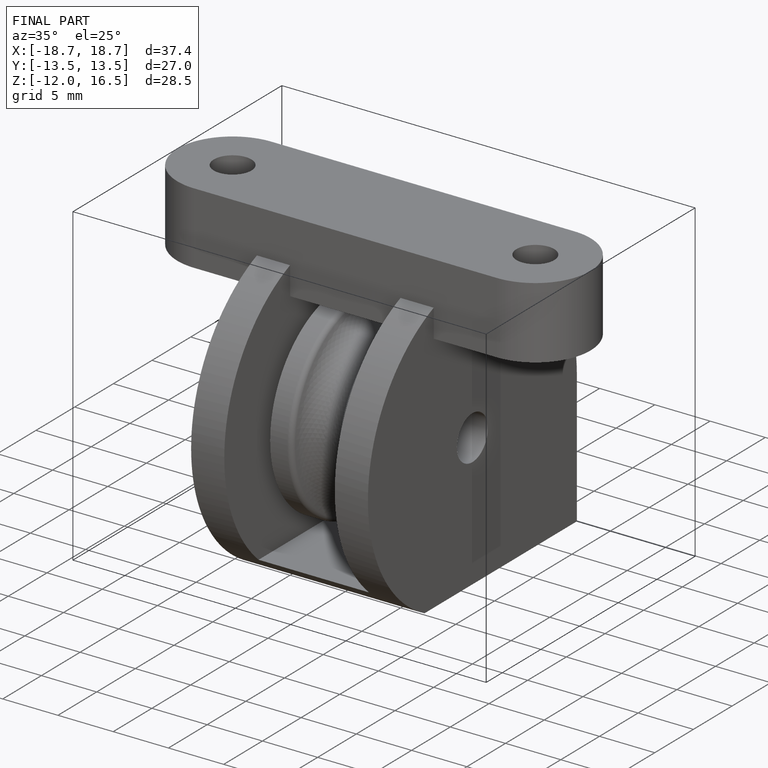
[diagram: finished part — iso view with bounding-box wireframe]
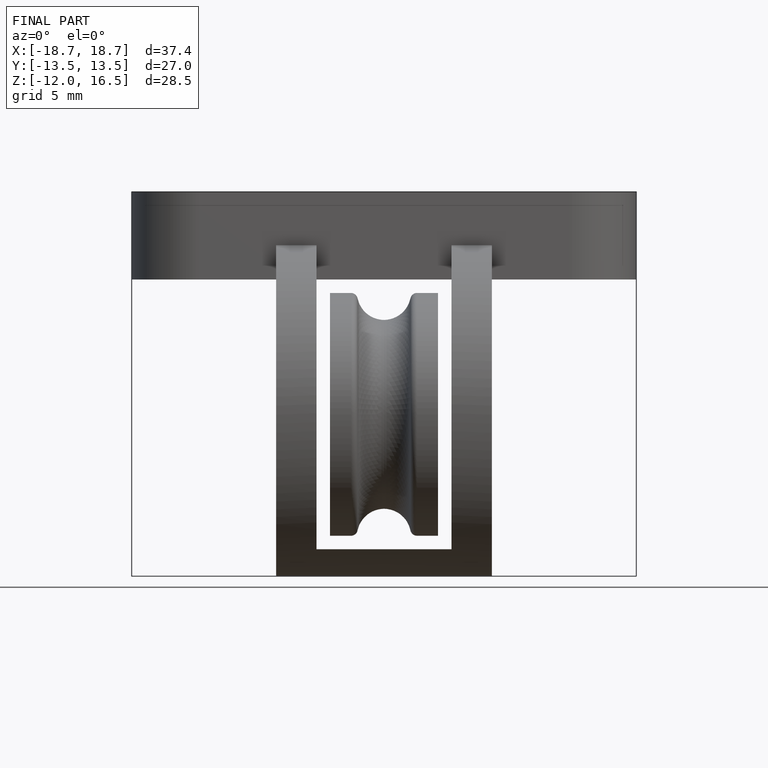
[diagram: finished part — front view with bounding-box wireframe]
